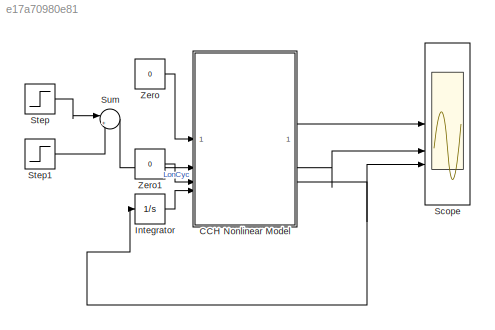
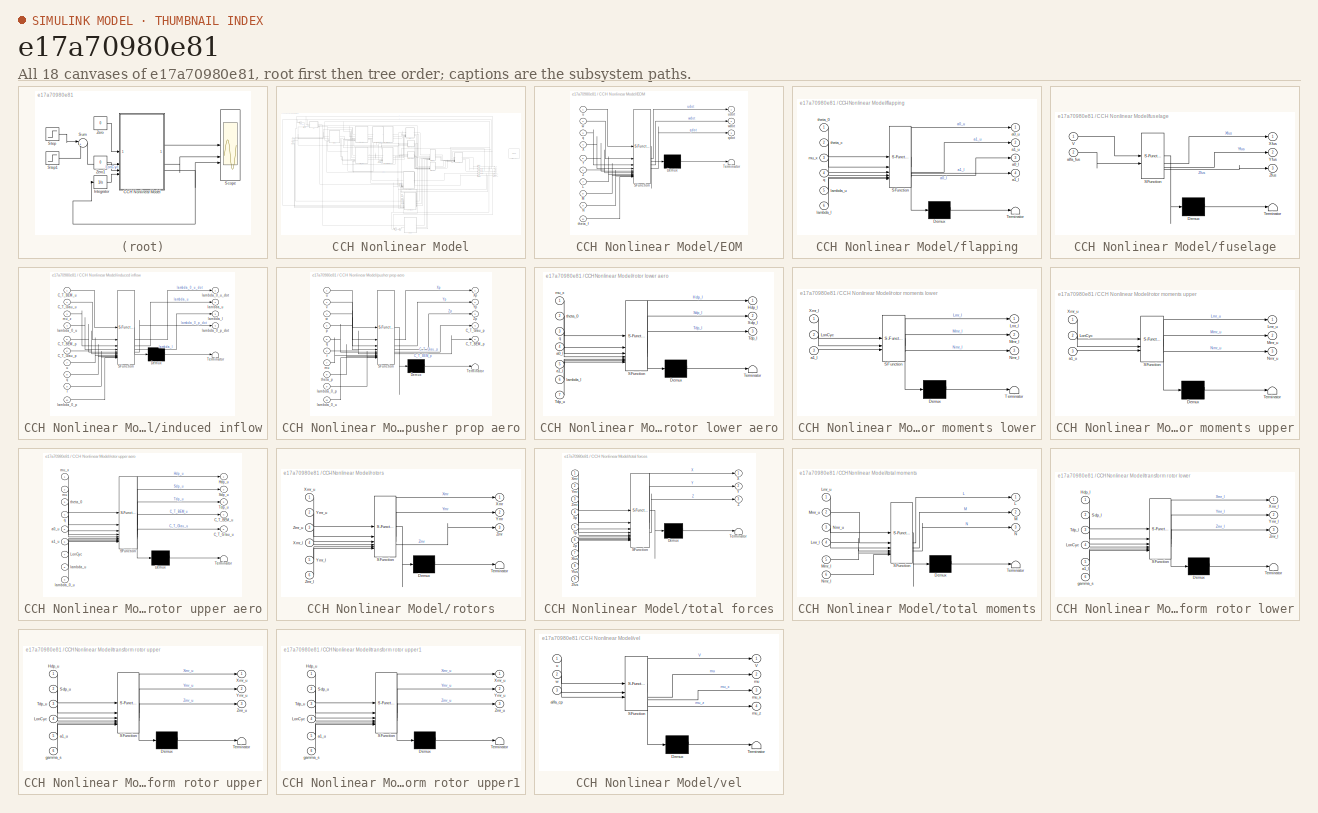
[diagram: thumbnail index - all 18 canvases of the model, root first then tree order]
MODEL slx_e17a70980e81
KIND model
CONFIG AbsTol = auto
CONFIG EnableMultiTasking = off
CONFIG FixedStep = auto
CONFIG MaxStep = auto
CONFIG MinStep = auto
CONFIG RelTol = 1e-3
CONFIG SampleTimeConstraint = Unconstrained
CONFIG SolverName = VariableStepAuto
CONFIG StartTime = 0.0
CONFIG StopTime = 10.0
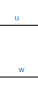
[diagram: CCH Nonlinear Model - part 1/7, top center region]
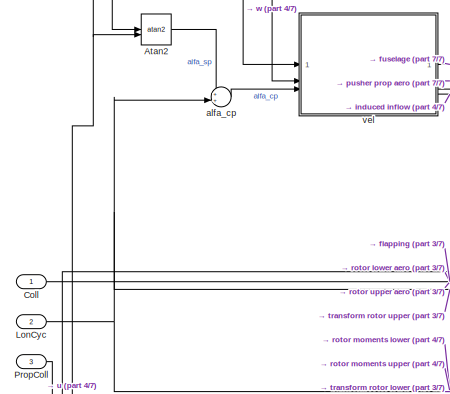
[diagram: CCH Nonlinear Model - part 2/7, top left region]
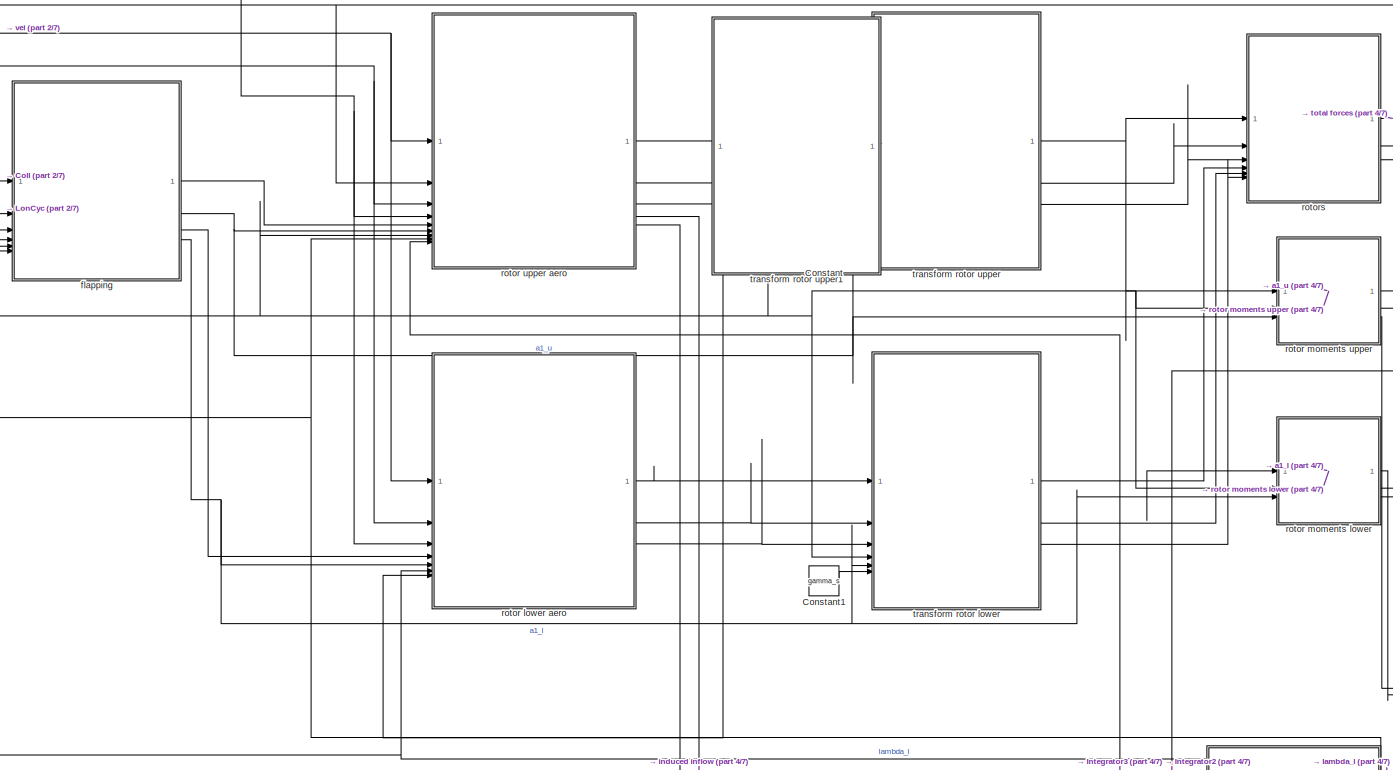
[diagram: CCH Nonlinear Model - part 3/7, top center region]
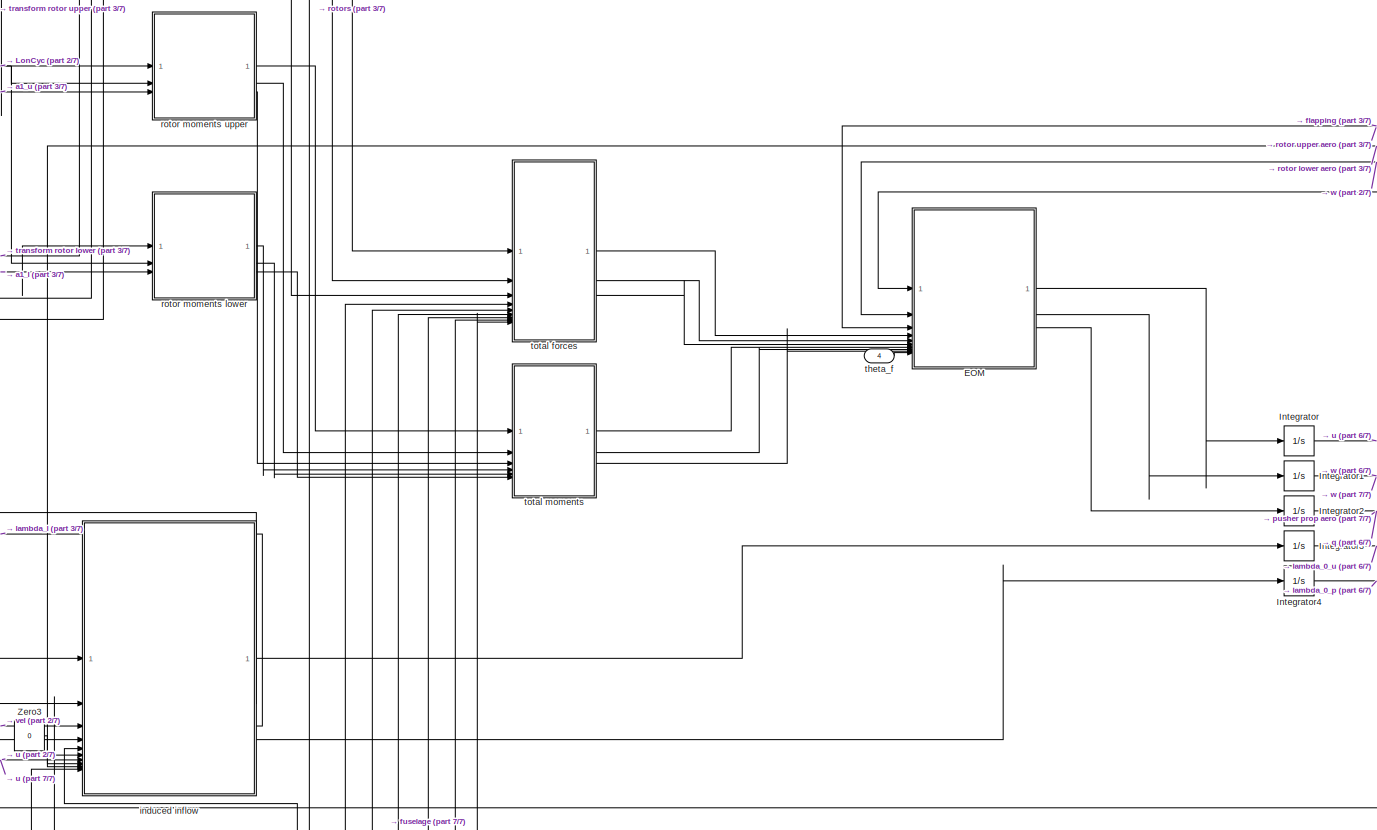
[diagram: CCH Nonlinear Model - part 4/7, central region]
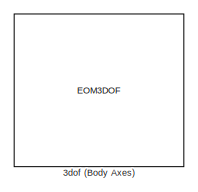
[diagram: CCH Nonlinear Model - part 5/7, middle right region]
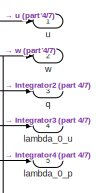
[diagram: CCH Nonlinear Model - part 6/7, middle right region]
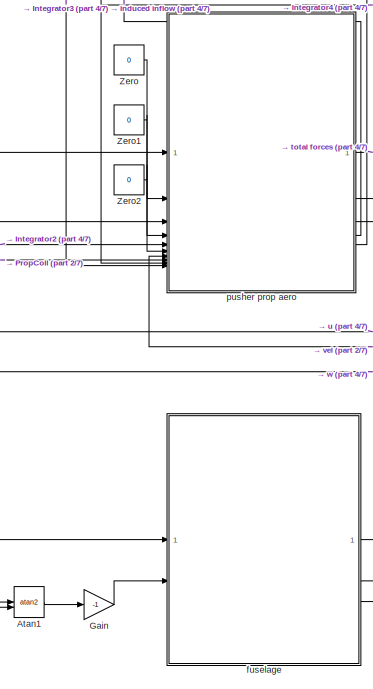
[diagram: CCH Nonlinear Model - part 7/7, bottom center region]
BLOCK [SubSystem] CCH Nonlinear Model
BLOCK [EOM3DOF] CCH Nonlinear Model/3dof (Body Axes)
  Iyy = Iyy
  g = g
  mass = mass
  v_ini = 0
BLOCK [Trigonometry] CCH Nonlinear Model/Atan1
  Operator = atan2
BLOCK [Trigonometry] CCH Nonlinear Model/Atan2
  Operator = atan2
BLOCK [Inport] CCH Nonlinear Model/Coll
BLOCK [Constant] CCH Nonlinear Model/Constant
  Value = gamma_s
BLOCK [Constant] CCH Nonlinear Model/Constant1
  Value = gamma_s
BLOCK [SubSystem] CCH Nonlinear Model/EOM
  ErrorFcn = Stateflow.Translate.translate
  LibrarySourceBlock = simulink/User-Defined\nFunctions/MATLAB Function
  PermitHierarchicalResolution = ExplicitOnly
  SFBlockType = MATLAB Function
  TreatAsAtomicUnit = on
BLOCK [Demux] CCH Nonlinear Model/EOM/ Demux 
  Outputs = 1
BLOCK [S-Function] CCH Nonlinear Model/EOM/ SFunction 
  EnableBusSupport = on
  FunctionName = sf_sfun
  PortCounts = [10 4]
  SFcnIsStateOwnerBlock = off
  SFunctionDeploymentMode = off
  Tag = Stateflow S-Function 16
BLOCK [Terminator] CCH Nonlinear Model/EOM/ Terminator 
BLOCK [Inport] CCH Nonlinear Model/EOM/L
  Port = 7
BLOCK [Inport] CCH Nonlinear Model/EOM/M
  Port = 8
BLOCK [Inport] CCH Nonlinear Model/EOM/N
  Port = 9
BLOCK [Inport] CCH Nonlinear Model/EOM/X
  Port = 4
BLOCK [Inport] CCH Nonlinear Model/EOM/Y
  Port = 5
BLOCK [Inport] CCH Nonlinear Model/EOM/Z
  Port = 6
BLOCK [Inport] CCH Nonlinear Model/EOM/q
  Port = 3
BLOCK [Outport] CCH Nonlinear Model/EOM/qdot
  Port = 3
BLOCK [Inport] CCH Nonlinear Model/EOM/theta_f
  Port = 10
BLOCK [Inport] CCH Nonlinear Model/EOM/u
BLOCK [Outport] CCH Nonlinear Model/EOM/udot
BLOCK [Inport] CCH Nonlinear Model/EOM/w
  Port = 2
BLOCK [Outport] CCH Nonlinear Model/EOM/wdot
  Port = 2
BLOCK [Gain] CCH Nonlinear Model/Gain
  Gain = -1
BLOCK [Integrator] CCH Nonlinear Model/Integrator
BLOCK [Integrator] CCH Nonlinear Model/Integrator1
BLOCK [Integrator] CCH Nonlinear Model/Integrator2
BLOCK [Integrator] CCH Nonlinear Model/Integrator3
BLOCK [Integrator] CCH Nonlinear Model/Integrator4
BLOCK [Inport] CCH Nonlinear Model/LonCyc
  Port = 2
BLOCK [Inport] CCH Nonlinear Model/PropColl
  Port = 3
BLOCK [Constant] CCH Nonlinear Model/Zero
  OutDataTypeStr = Inherit: Inherit via back propagation
  Value = 0
BLOCK [Constant] CCH Nonlinear Model/Zero1
  OutDataTypeStr = Inherit: Inherit via back propagation
  Value = 0
BLOCK [Constant] CCH Nonlinear Model/Zero2
  OutDataTypeStr = Inherit: Inherit via back propagation
  Value = 0
BLOCK [Constant] CCH Nonlinear Model/Zero3
  OutDataTypeStr = Inherit: Inherit via back propagation
  Value = 0
BLOCK [Sum] CCH Nonlinear Model/alfa_cp
  Inputs = ++|
BLOCK [SubSystem] CCH Nonlinear Model/flapping
  ErrorFcn = Stateflow.Translate.translate
  LibrarySourceBlock = simulink/User-Defined\nFunctions/MATLAB Function
  PermitHierarchicalResolution = ExplicitOnly
  SFBlockType = MATLAB Function
  TreatAsAtomicUnit = on
BLOCK [Demux] CCH Nonlinear Model/flapping/ Demux 
  Outputs = 1
BLOCK [S-Function] CCH Nonlinear Model/flapping/ SFunction 
  EnableBusSupport = on
  FunctionName = sf_sfun
  PortCounts = [6 5]
  SFcnIsStateOwnerBlock = off
  SFunctionDeploymentMode = off
  Tag = Stateflow S-Function 2
BLOCK [Terminator] CCH Nonlinear Model/flapping/ Terminator 
BLOCK [Outport] CCH Nonlinear Model/flapping/a0_l
  Port = 3
BLOCK [Outport] CCH Nonlinear Model/flapping/a0_u
BLOCK [Outport] CCH Nonlinear Model/flapping/a1_l
  Port = 4
BLOCK [Outport] CCH Nonlinear Model/flapping/a1_u
  Port = 2
BLOCK [Inport] CCH Nonlinear Model/flapping/lambda_l
  Port = 6
BLOCK [Inport] CCH Nonlinear Model/flapping/lambda_u
  Port = 5
BLOCK [Inport] CCH Nonlinear Model/flapping/mu_x
  Port = 3
BLOCK [Inport] CCH Nonlinear Model/flapping/q
  Port = 4
BLOCK [Inport] CCH Nonlinear Model/flapping/theta_0
BLOCK [Inport] CCH Nonlinear Model/flapping/theta_c
  Port = 2
BLOCK [SubSystem] CCH Nonlinear Model/fuselage
  ErrorFcn = Stateflow.Translate.translate
  LibrarySourceBlock = simulink/User-Defined\nFunctions/MATLAB Function
  PermitHierarchicalResolution = ExplicitOnly
  SFBlockType = MATLAB Function
  TreatAsAtomicUnit = on
BLOCK [Demux] CCH Nonlinear Model/fuselage/ Demux 
  Outputs = 1
BLOCK [S-Function] CCH Nonlinear Model/fuselage/ SFunction 
  EnableBusSupport = on
  FunctionName = sf_sfun
  PortCounts = [2 4]
  SFcnIsStateOwnerBlock = off
  SFunctionDeploymentMode = off
  Tag = Stateflow S-Function 13
BLOCK [Terminator] CCH Nonlinear Model/fuselage/ Terminator 
BLOCK [Inport] CCH Nonlinear Model/fuselage/V
BLOCK [Outport] CCH Nonlinear Model/fuselage/Xfus
BLOCK [Outport] CCH Nonlinear Model/fuselage/Yfus
  Port = 2
BLOCK [Outport] CCH Nonlinear Model/fuselage/Zfus
  Port = 3
BLOCK [Inport] CCH Nonlinear Model/fuselage/alfa_fus
  Port = 2
BLOCK [SubSystem] CCH Nonlinear Model/induced inflow
  ErrorFcn = Stateflow.Translate.translate
  LibrarySourceBlock = simulink/User-Defined\nFunctions/MATLAB Function
  PermitHierarchicalResolution = ExplicitOnly
  SFBlockType = MATLAB Function
  TreatAsAtomicUnit = on
BLOCK [Demux] CCH Nonlinear Model/induced inflow/ Demux 
  Outputs = 1
BLOCK [S-Function] CCH Nonlinear Model/induced inflow/ SFunction 
  EnableBusSupport = on
  FunctionName = sf_sfun
  PortCounts = [10 5]
  SFcnIsStateOwnerBlock = off
  SFunctionDeploymentMode = off
  Tag = Stateflow S-Function 6
BLOCK [Terminator] CCH Nonlinear Model/induced inflow/ Terminator 
BLOCK [Inport] CCH Nonlinear Model/induced inflow/C_T_BEM_p
  Port = 5
BLOCK [Inport] CCH Nonlinear Model/induced inflow/C_T_BEM_u
BLOCK [Inport] CCH Nonlinear Model/induced inflow/C_T_Glau_p
  Port = 6
BLOCK [Inport] CCH Nonlinear Model/induced inflow/C_T_Glau_u
  Port = 2
BLOCK [Inport] CCH Nonlinear Model/induced inflow/lambda_0_p
  Port = 10
BLOCK [Outport] CCH Nonlinear Model/induced inflow/lambda_0_p_dot
  Port = 4
BLOCK [Inport] CCH Nonlinear Model/induced inflow/lambda_0_u
  Port = 4
BLOCK [Outport] CCH Nonlinear Model/induced inflow/lambda_0_u_dot
BLOCK [Outport] CCH Nonlinear Model/induced inflow/lambda_l
  Port = 3
BLOCK [Outport] CCH Nonlinear Model/induced inflow/lambda_u
  Port = 2
BLOCK [Inport] CCH Nonlinear Model/induced inflow/mu_z
  Port = 3
BLOCK [Inport] CCH Nonlinear Model/induced inflow/q
  Port = 8
BLOCK [Inport] CCH Nonlinear Model/induced inflow/r
  Port = 9
BLOCK [Inport] CCH Nonlinear Model/induced inflow/u
  Port = 7
BLOCK [Outport] CCH Nonlinear Model/lambda_0_p
  Port = 5
BLOCK [Outport] CCH Nonlinear Model/lambda_0_u
  Port = 4
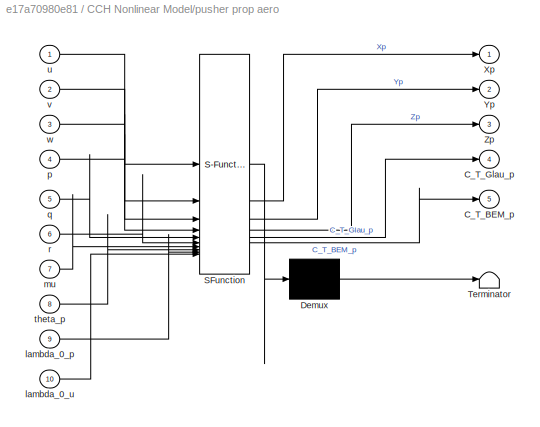
BLOCK [SubSystem] CCH Nonlinear Model/pusher prop aero
  ErrorFcn = Stateflow.Translate.translate
  LibrarySourceBlock = simulink/User-Defined\nFunctions/MATLAB Function
  PermitHierarchicalResolution = ExplicitOnly
  SFBlockType = MATLAB Function
  TreatAsAtomicUnit = on
BLOCK [Demux] CCH Nonlinear Model/pusher prop aero/ Demux 
  Outputs = 1
BLOCK [S-Function] CCH Nonlinear Model/pusher prop aero/ SFunction 
  EnableBusSupport = on
  FunctionName = sf_sfun
  PortCounts = [10 6]
  SFcnIsStateOwnerBlock = off
  SFunctionDeploymentMode = off
  Tag = Stateflow S-Function 10
BLOCK [Terminator] CCH Nonlinear Model/pusher prop aero/ Terminator 
BLOCK [Outport] CCH Nonlinear Model/pusher prop aero/C_T_BEM_p
  Port = 5
BLOCK [Outport] CCH Nonlinear Model/pusher prop aero/C_T_Glau_p
  Port = 4
BLOCK [Outport] CCH Nonlinear Model/pusher prop aero/Xp
BLOCK [Outport] CCH Nonlinear Model/pusher prop aero/Yp
  Port = 2
BLOCK [Outport] CCH Nonlinear Model/pusher prop aero/Zp
  Port = 3
BLOCK [Inport] CCH Nonlinear Model/pusher prop aero/lambda_0_p
  Port = 9
BLOCK [Inport] CCH Nonlinear Model/pusher prop aero/lambda_0_u
  Port = 10
BLOCK [Inport] CCH Nonlinear Model/pusher prop aero/mu
  Port = 7
BLOCK [Inport] CCH Nonlinear Model/pusher prop aero/p
  Port = 4
BLOCK [Inport] CCH Nonlinear Model/pusher prop aero/q
  Port = 5
BLOCK [Inport] CCH Nonlinear Model/pusher prop aero/r
  Port = 6
BLOCK [Inport] CCH Nonlinear Model/pusher prop aero/theta_p
  Port = 8
BLOCK [Inport] CCH Nonlinear Model/pusher prop aero/u
BLOCK [Inport] CCH Nonlinear Model/pusher prop aero/v
  Port = 2
BLOCK [Inport] CCH Nonlinear Model/pusher prop aero/w
  Port = 3
BLOCK [Outport] CCH Nonlinear Model/q
  Port = 3
BLOCK [SubSystem] CCH Nonlinear Model/rotor lower aero
  ErrorFcn = Stateflow.Translate.translate
  LibrarySourceBlock = simulink/User-Defined\nFunctions/MATLAB Function
  PermitHierarchicalResolution = ExplicitOnly
  SFBlockType = MATLAB Function
  TreatAsAtomicUnit = on
BLOCK [Demux] CCH Nonlinear Model/rotor lower aero/ Demux 
  Outputs = 1
BLOCK [S-Function] CCH Nonlinear Model/rotor lower aero/ SFunction 
  EnableBusSupport = on
  FunctionName = sf_sfun
  PortCounts = [7 4]
  SFcnIsStateOwnerBlock = off
  SFunctionDeploymentMode = off
  Tag = Stateflow S-Function 7
BLOCK [Terminator] CCH Nonlinear Model/rotor lower aero/ Terminator 
BLOCK [Outport] CCH Nonlinear Model/rotor lower aero/Hdp_l
BLOCK [Outport] CCH Nonlinear Model/rotor lower aero/Sdp_l
  Port = 2
BLOCK [Outport] CCH Nonlinear Model/rotor lower aero/Tdp_l
  Port = 3
BLOCK [Inport] CCH Nonlinear Model/rotor lower aero/Tdp_u
  Port = 7
BLOCK [Inport] CCH Nonlinear Model/rotor lower aero/a0_l
  Port = 4
BLOCK [Inport] CCH Nonlinear Model/rotor lower aero/a1_l
  Port = 5
BLOCK [Inport] CCH Nonlinear Model/rotor lower aero/lambda_l
  Port = 6
BLOCK [Inport] CCH Nonlinear Model/rotor lower aero/mu_x
BLOCK [Inport] CCH Nonlinear Model/rotor lower aero/q
  Port = 3
BLOCK [Inport] CCH Nonlinear Model/rotor lower aero/theta_0
  Port = 2
BLOCK [SubSystem] CCH Nonlinear Model/rotor moments lower
  ErrorFcn = Stateflow.Translate.translate
  LibrarySourceBlock = simulink/User-Defined\nFunctions/MATLAB Function
  PermitHierarchicalResolution = ExplicitOnly
  SFBlockType = MATLAB Function
  TreatAsAtomicUnit = on
BLOCK [Demux] CCH Nonlinear Model/rotor moments lower/ Demux 
  Outputs = 1
BLOCK [S-Function] CCH Nonlinear Model/rotor moments lower/ SFunction 
  EnableBusSupport = on
  FunctionName = sf_sfun
  PortCounts = [3 4]
  SFcnIsStateOwnerBlock = off
  SFunctionDeploymentMode = off
  Tag = Stateflow S-Function 12
BLOCK [Terminator] CCH Nonlinear Model/rotor moments lower/ Terminator 
BLOCK [Outport] CCH Nonlinear Model/rotor moments lower/Lmr_l
BLOCK [Inport] CCH Nonlinear Model/rotor moments lower/LonCyc
  Port = 2
BLOCK [Outport] CCH Nonlinear Model/rotor moments lower/Mmr_l
  Port = 2
BLOCK [Outport] CCH Nonlinear Model/rotor moments lower/Nmr_l
  Port = 3
BLOCK [Inport] CCH Nonlinear Model/rotor moments lower/Xmr_l
BLOCK [Inport] CCH Nonlinear Model/rotor moments lower/a1_l
  Port = 3
BLOCK [SubSystem] CCH Nonlinear Model/rotor moments upper
  ErrorFcn = Stateflow.Translate.translate
  LibrarySourceBlock = simulink/User-Defined\nFunctions/MATLAB Function
  PermitHierarchicalResolution = ExplicitOnly
  SFBlockType = MATLAB Function
  TreatAsAtomicUnit = on
BLOCK [Demux] CCH Nonlinear Model/rotor moments upper/ Demux 
  Outputs = 1
BLOCK [S-Function] CCH Nonlinear Model/rotor moments upper/ SFunction 
  EnableBusSupport = on
  FunctionName = sf_sfun
  PortCounts = [3 4]
  SFcnIsStateOwnerBlock = off
  SFunctionDeploymentMode = off
  Tag = Stateflow S-Function 11
BLOCK [Terminator] CCH Nonlinear Model/rotor moments upper/ Terminator 
BLOCK [Outport] CCH Nonlinear Model/rotor moments upper/Lmr_u
BLOCK [Inport] CCH Nonlinear Model/rotor moments upper/LonCyc
  Port = 2
BLOCK [Outport] CCH Nonlinear Model/rotor moments upper/Mmr_u
  Port = 2
BLOCK [Outport] CCH Nonlinear Model/rotor moments upper/Nmr_u
  Port = 3
BLOCK [Inport] CCH Nonlinear Model/rotor moments upper/Xmr_u
BLOCK [Inport] CCH Nonlinear Model/rotor moments upper/a1_u
  Port = 3
BLOCK [SubSystem] CCH Nonlinear Model/rotor upper aero
  ErrorFcn = Stateflow.Translate.translate
  LibrarySourceBlock = simulink/User-Defined\nFunctions/MATLAB Function
  PermitHierarchicalResolution = ExplicitOnly
  SFBlockType = MATLAB Function
  TreatAsAtomicUnit = on
BLOCK [Demux] CCH Nonlinear Model/rotor upper aero/ Demux 
  Outputs = 1
BLOCK [S-Function] CCH Nonlinear Model/rotor upper aero/ SFunction 
  EnableBusSupport = on
  FunctionName = sf_sfun
  PortCounts = [9 6]
  SFcnIsStateOwnerBlock = off
  SFunctionDeploymentMode = off
  Tag = Stateflow S-Function 5
BLOCK [Terminator] CCH Nonlinear Model/rotor upper aero/ Terminator 
BLOCK [Outport] CCH Nonlinear Model/rotor upper aero/C_T_BEM_u
  Port = 4
BLOCK [Outport] CCH Nonlinear Model/rotor upper aero/C_T_Glau_u
  Port = 5
BLOCK [Outport] CCH Nonlinear Model/rotor upper aero/Hdp_u
BLOCK [Inport] CCH Nonlinear Model/rotor upper aero/LonCyc
  Port = 7
BLOCK [Outport] CCH Nonlinear Model/rotor upper aero/Sdp_u
  Port = 2
BLOCK [Outport] CCH Nonlinear Model/rotor upper aero/Tdp_u
  Port = 3
BLOCK [Inport] CCH Nonlinear Model/rotor upper aero/a0_u
  Port = 5
BLOCK [Inport] CCH Nonlinear Model/rotor upper aero/a1_u
  Port = 6
BLOCK [Inport] CCH Nonlinear Model/rotor upper aero/lambda_0_u
  Port = 9
BLOCK [Inport] CCH Nonlinear Model/rotor upper aero/lambda_u
  Port = 8
BLOCK [Inport] CCH Nonlinear Model/rotor upper aero/mu
  Port = 2
BLOCK [Inport] CCH Nonlinear Model/rotor upper aero/mu_x
BLOCK [Inport] CCH Nonlinear Model/rotor upper aero/q
  Port = 4
BLOCK [Inport] CCH Nonlinear Model/rotor upper aero/theta_0
  Port = 3
BLOCK [SubSystem] CCH Nonlinear Model/rotors
  ErrorFcn = Stateflow.Translate.translate
  LibrarySourceBlock = simulink/User-Defined\nFunctions/MATLAB Function
  PermitHierarchicalResolution = ExplicitOnly
  SFBlockType = MATLAB Function
  TreatAsAtomicUnit = on
BLOCK [Demux] CCH Nonlinear Model/rotors/ Demux 
  Outputs = 1
BLOCK [S-Function] CCH Nonlinear Model/rotors/ SFunction 
  EnableBusSupport = on
  FunctionName = sf_sfun
  PortCounts = [6 4]
  SFcnIsStateOwnerBlock = off
  SFunctionDeploymentMode = off
  Tag = Stateflow S-Function 9
BLOCK [Terminator] CCH Nonlinear Model/rotors/ Terminator 
BLOCK [Outport] CCH Nonlinear Model/rotors/Xmr
BLOCK [Inport] CCH Nonlinear Model/rotors/Xmr_l
  Port = 4
BLOCK [Inport] CCH Nonlinear Model/rotors/Xmr_u
BLOCK [Outport] CCH Nonlinear Model/rotors/Ymr
  Port = 2
BLOCK [Inport] CCH Nonlinear Model/rotors/Ymr_l
  Port = 5
BLOCK [Inport] CCH Nonlinear Model/rotors/Ymr_u
  Port = 2
BLOCK [Outport] CCH Nonlinear Model/rotors/Zmr
  Port = 3
BLOCK [Inport] CCH Nonlinear Model/rotors/Zmr_l
  Port = 6
BLOCK [Inport] CCH Nonlinear Model/rotors/Zmr_u
  Port = 3
BLOCK [Inport] CCH Nonlinear Model/theta_f
  Port = 4
BLOCK [SubSystem] CCH Nonlinear Model/total forces
  ErrorFcn = Stateflow.Translate.translate
  LibrarySourceBlock = simulink/User-Defined\nFunctions/MATLAB Function
  PermitHierarchicalResolution = ExplicitOnly
  SFBlockType = MATLAB Function
  TreatAsAtomicUnit = on
BLOCK [Demux] CCH Nonlinear Model/total forces/ Demux 
  Outputs = 1
BLOCK [S-Function] CCH Nonlinear Model/total forces/ SFunction 
  EnableBusSupport = on
  FunctionName = sf_sfun
  PortCounts = [9 4]
  SFcnIsStateOwnerBlock = off
  SFunctionDeploymentMode = off
  Tag = Stateflow S-Function 14
BLOCK [Terminator] CCH Nonlinear Model/total forces/ Terminator 
BLOCK [Outport] CCH Nonlinear Model/total forces/X
BLOCK [Inport] CCH Nonlinear Model/total forces/Xfus
  Port = 7
BLOCK [Inport] CCH Nonlinear Model/total forces/Xmr
BLOCK [Inport] CCH Nonlinear Model/total forces/Xp
  Port = 4
BLOCK [Outport] CCH Nonlinear Model/total forces/Y
  Port = 2
BLOCK [Inport] CCH Nonlinear Model/total forces/Yfus
  Port = 8
BLOCK [Inport] CCH Nonlinear Model/total forces/Ymr
  Port = 2
BLOCK [Inport] CCH Nonlinear Model/total forces/Yp
  Port = 5
BLOCK [Outport] CCH Nonlinear Model/total forces/Z
  Port = 3
BLOCK [Inport] CCH Nonlinear Model/total forces/Zfus
  Port = 9
BLOCK [Inport] CCH Nonlinear Model/total forces/Zmr
  Port = 3
BLOCK [Inport] CCH Nonlinear Model/total forces/Zp
  Port = 6
BLOCK [SubSystem] CCH Nonlinear Model/total moments
  ErrorFcn = Stateflow.Translate.translate
  LibrarySourceBlock = simulink/User-Defined\nFunctions/MATLAB Function
  PermitHierarchicalResolution = ExplicitOnly
  SFBlockType = MATLAB Function
  TreatAsAtomicUnit = on
BLOCK [Demux] CCH Nonlinear Model/total moments/ Demux 
  Outputs = 1
BLOCK [S-Function] CCH Nonlinear Model/total moments/ SFunction 
  EnableBusSupport = on
  FunctionName = sf_sfun
  PortCounts = [6 4]
  SFcnIsStateOwnerBlock = off
  SFunctionDeploymentMode = off
  Tag = Stateflow S-Function 15
BLOCK [Terminator] CCH Nonlinear Model/total moments/ Terminator 
BLOCK [Outport] CCH Nonlinear Model/total moments/L
BLOCK [Inport] CCH Nonlinear Model/total moments/Lmr_l
  Port = 4
BLOCK [Inport] CCH Nonlinear Model/total moments/Lmr_u
BLOCK [Outport] CCH Nonlinear Model/total moments/M
  Port = 2
BLOCK [Inport] CCH Nonlinear Model/total moments/Mmr_l
  Port = 5
BLOCK [Inport] CCH Nonlinear Model/total moments/Mmr_u
  Port = 2
BLOCK [Outport] CCH Nonlinear Model/total moments/N
  Port = 3
BLOCK [Inport] CCH Nonlinear Model/total moments/Nmr_l
  Port = 6
BLOCK [Inport] CCH Nonlinear Model/total moments/Nmr_u
  Port = 3
BLOCK [SubSystem] CCH Nonlinear Model/transform rotor lower
  ErrorFcn = Stateflow.Translate.translate
  LibrarySourceBlock = simulink/User-Defined\nFunctions/MATLAB Function
  PermitHierarchicalResolution = ExplicitOnly
  SFBlockType = MATLAB Function
  TreatAsAtomicUnit = on
BLOCK [Demux] CCH Nonlinear Model/transform rotor lower/ Demux 
  Outputs = 1
BLOCK [S-Function] CCH Nonlinear Model/transform rotor lower/ SFunction 
  EnableBusSupport = on
  FunctionName = sf_sfun
  PortCounts = [6 4]
  SFcnIsStateOwnerBlock = off
  SFunctionDeploymentMode = off
  Tag = Stateflow S-Function 8
BLOCK [Terminator] CCH Nonlinear Model/transform rotor lower/ Terminator 
BLOCK [Inport] CCH Nonlinear Model/transform rotor lower/Hdp_l
BLOCK [Inport] CCH Nonlinear Model/transform rotor lower/LonCyc
  Port = 4
BLOCK [Inport] CCH Nonlinear Model/transform rotor lower/Sdp_l
  Port = 2
BLOCK [Inport] CCH Nonlinear Model/transform rotor lower/Tdp_l
  Port = 3
BLOCK [Outport] CCH Nonlinear Model/transform rotor lower/Xmr_l
BLOCK [Outport] CCH Nonlinear Model/transform rotor lower/Ymr_l
  Port = 2
BLOCK [Outport] CCH Nonlinear Model/transform rotor lower/Zmr_l
  Port = 3
BLOCK [Inport] CCH Nonlinear Model/transform rotor lower/a1_l
  Port = 5
BLOCK [Inport] CCH Nonlinear Model/transform rotor lower/gamma_s
  Port = 6
BLOCK [SubSystem] CCH Nonlinear Model/transform rotor upper
  ErrorFcn = Stateflow.Translate.translate
  LibrarySourceBlock = simulink/User-Defined\nFunctions/MATLAB Function
  PermitHierarchicalResolution = ExplicitOnly
  SFBlockType = MATLAB Function
  TreatAsAtomicUnit = on
BLOCK [Demux] CCH Nonlinear Model/transform rotor upper/ Demux 
  Outputs = 1
BLOCK [S-Function] CCH Nonlinear Model/transform rotor upper/ SFunction 
  EnableBusSupport = on
  FunctionName = sf_sfun
  PortCounts = [6 4]
  SFcnIsStateOwnerBlock = off
  SFunctionDeploymentMode = off
  Tag = Stateflow S-Function 4
BLOCK [Terminator] CCH Nonlinear Model/transform rotor upper/ Terminator 
BLOCK [Inport] CCH Nonlinear Model/transform rotor upper/Hdp_u
BLOCK [Inport] CCH Nonlinear Model/transform rotor upper/LonCyc
  Port = 4
BLOCK [Inport] CCH Nonlinear Model/transform rotor upper/Sdp_u
  Port = 2
BLOCK [Inport] CCH Nonlinear Model/transform rotor upper/Tdp_u
  Port = 3
BLOCK [Outport] CCH Nonlinear Model/transform rotor upper/Xmr_u
BLOCK [Outport] CCH Nonlinear Model/transform rotor upper/Ymr_u
  Port = 2
BLOCK [Outport] CCH Nonlinear Model/transform rotor upper/Zmr_u
  Port = 3
BLOCK [Inport] CCH Nonlinear Model/transform rotor upper/a1_u
  Port = 5
BLOCK [Inport] CCH Nonlinear Model/transform rotor upper/gamma_s
  Port = 6
BLOCK [SubSystem] CCH Nonlinear Model/transform rotor upper1
  ErrorFcn = Stateflow.Translate.translate
  LibrarySourceBlock = simulink/User-Defined\nFunctions/MATLAB Function
  PermitHierarchicalResolution = ExplicitOnly
  SFBlockType = MATLAB Function
  TreatAsAtomicUnit = on
BLOCK [Demux] CCH Nonlinear Model/transform rotor upper1/ Demux 
  Outputs = 1
BLOCK [S-Function] CCH Nonlinear Model/transform rotor upper1/ SFunction 
  EnableBusSupport = on
  FunctionName = sf_sfun
  PortCounts = [6 4]
  SFcnIsStateOwnerBlock = off
  SFunctionDeploymentMode = off
  Tag = Stateflow S-Function 3
BLOCK [Terminator] CCH Nonlinear Model/transform rotor upper1/ Terminator 
BLOCK [Inport] CCH Nonlinear Model/transform rotor upper1/Hdp_u
BLOCK [Inport] CCH Nonlinear Model/transform rotor upper1/LonCyc
  Port = 4
BLOCK [Inport] CCH Nonlinear Model/transform rotor upper1/Sdp_u
  Port = 2
BLOCK [Inport] CCH Nonlinear Model/transform rotor upper1/Tdp_u
  Port = 3
BLOCK [Outport] CCH Nonlinear Model/transform rotor upper1/Xmr_u
BLOCK [Outport] CCH Nonlinear Model/transform rotor upper1/Ymr_u
  Port = 2
BLOCK [Outport] CCH Nonlinear Model/transform rotor upper1/Zmr_u
  Port = 3
BLOCK [Inport] CCH Nonlinear Model/transform rotor upper1/a1_u
  Port = 5
BLOCK [Inport] CCH Nonlinear Model/transform rotor upper1/gamma_s
  Port = 6
BLOCK [Outport] CCH Nonlinear Model/u
BLOCK [SubSystem] CCH Nonlinear Model/vel
  ErrorFcn = Stateflow.Translate.translate
  LibrarySourceBlock = simulink/User-Defined\nFunctions/MATLAB Function
  PermitHierarchicalResolution = ExplicitOnly
  SFBlockType = MATLAB Function
  TreatAsAtomicUnit = on
BLOCK [Demux] CCH Nonlinear Model/vel/ Demux 
  Outputs = 1
BLOCK [S-Function] CCH Nonlinear Model/vel/ SFunction 
  EnableBusSupport = on
  FunctionName = sf_sfun
  PortCounts = [3 5]
  SFcnIsStateOwnerBlock = off
  SFunctionDeploymentMode = off
  Tag = Stateflow S-Function 1
BLOCK [Terminator] CCH Nonlinear Model/vel/ Terminator 
BLOCK [Outport] CCH Nonlinear Model/vel/V
BLOCK [Inport] CCH Nonlinear Model/vel/alfa_cp
  Port = 3
BLOCK [Outport] CCH Nonlinear Model/vel/mu
  Port = 2
BLOCK [Outport] CCH Nonlinear Model/vel/mu_x
  Port = 3
BLOCK [Outport] CCH Nonlinear Model/vel/mu_z
  Port = 4
BLOCK [Inport] CCH Nonlinear Model/vel/u
BLOCK [Inport] CCH Nonlinear Model/vel/w
  Port = 2
BLOCK [Outport] CCH Nonlinear Model/w
  Port = 2
BLOCK [Integrator] Integrator
BLOCK [Scope] Scope
  Floating = off
  NumInputPorts = 3
  ScopeSpecificationString = Simulink.scopes.TimeScopeBlockCfg('CurrentConfiguration', extmgr.ConfigurationSet(extmgr.Configuration('Core','General UI',true),extmgr.Configuration('Core','Source UI',true),extmgr.Configuration('Sources','WiredSimulink',true),extmgr.Configuration('Visuals','Time Domain',true),extmgr.Configuration('Tools','Plot Navigation',true),extmgr.Configuration('Tools','Measurements',true)),'Version','2023a'...<+1ch>
BLOCK [Step] Step
  SampleTime = 0
BLOCK [Step] Step1
  After = -1
  SampleTime = 0
  Time = 2
BLOCK [Sum] Sum
  Inputs = |++
BLOCK [Constant] Zero
  OutDataTypeStr = Inherit: Inherit via back propagation
  Value = 0
BLOCK [Constant] Zero1
  OutDataTypeStr = Inherit: Inherit via back propagation
  Value = 0
LINE CCH Nonlinear Model/Atan1:1 -> CCH Nonlinear Model/Gain:1
LINE CCH Nonlinear Model/Atan2:1 -> CCH Nonlinear Model/alfa_cp:1
NET CCH Nonlinear Model/Coll:1 -> CCH Nonlinear Model/flapping:1, CCH Nonlinear Model/rotor lower aero:2, CCH Nonlinear Model/rotor upper aero:3
LINE CCH Nonlinear Model/Constant1:1 -> CCH Nonlinear Model/transform rotor lower:6
LINE CCH Nonlinear Model/Constant:1 -> CCH Nonlinear Model/transform rotor upper:6
LINE CCH Nonlinear Model/EOM:1 -> CCH Nonlinear Model/Integrator:1
LINE CCH Nonlinear Model/EOM:2 -> CCH Nonlinear Model/Integrator1:1
LINE CCH Nonlinear Model/EOM:3 -> CCH Nonlinear Model/Integrator2:1
LINE CCH Nonlinear Model/Gain:1 -> CCH Nonlinear Model/fuselage:2
NET CCH Nonlinear Model/Integrator1:1 -> CCH Nonlinear Model/Atan1:1, CCH Nonlinear Model/Atan2:1, CCH Nonlinear Model/EOM:2, CCH Nonlinear Model/pusher prop aero:3, CCH Nonlinear Model/vel:2, CCH Nonlinear Model/w:1
NET CCH Nonlinear Model/Integrator2:1 -> CCH Nonlinear Model/EOM:3, CCH Nonlinear Model/flapping:4, CCH Nonlinear Model/induced inflow:8, CCH Nonlinear Model/pusher prop aero:5, CCH Nonlinear Model/q:1, CCH Nonlinear Model/rotor lower aero:3, CCH Nonlinear Model/rotor upper aero:4
NET CCH Nonlinear Model/Integrator3:1 -> CCH Nonlinear Model/induced inflow:4, CCH Nonlinear Model/lambda_0_u:1, CCH Nonlinear Model/pusher prop aero:10, CCH Nonlinear Model/rotor upper aero:9
NET CCH Nonlinear Model/Integrator4:1 -> CCH Nonlinear Model/induced inflow:10, CCH Nonlinear Model/lambda_0_p:1, CCH Nonlinear Model/pusher prop aero:9
NET CCH Nonlinear Model/Integrator:1 -> CCH Nonlinear Model/Atan1:2, CCH Nonlinear Model/Atan2:2, CCH Nonlinear Model/EOM:1, CCH Nonlinear Model/induced inflow:7, CCH Nonlinear Model/pusher prop aero:1, CCH Nonlinear Model/u:1, CCH Nonlinear Model/vel:1
NET CCH Nonlinear Model/LonCyc:1 -> CCH Nonlinear Model/alfa_cp:2, CCH Nonlinear Model/flapping:2, CCH Nonlinear Model/rotor moments lower:2, CCH Nonlinear Model/rotor moments upper:2, CCH Nonlinear Model/rotor upper aero:7, CCH Nonlinear Model/transform rotor lower:4, CCH Nonlinear Model/transform rotor upper:4
LINE CCH Nonlinear Model/PropColl:1 -> CCH Nonlinear Model/pusher prop aero:8
LINE CCH Nonlinear Model/Zero1:1 -> CCH Nonlinear Model/pusher prop aero:4
LINE CCH Nonlinear Model/Zero2:1 -> CCH Nonlinear Model/pusher prop aero:6
LINE CCH Nonlinear Model/Zero3:1 -> CCH Nonlinear Model/induced inflow:9
LINE CCH Nonlinear Model/Zero:1 -> CCH Nonlinear Model/pusher prop aero:2
LINE CCH Nonlinear Model/alfa_cp:1 -> CCH Nonlinear Model/vel:3
LINE CCH Nonlinear Model/flapping:1 -> CCH Nonlinear Model/rotor upper aero:5
NET CCH Nonlinear Model/flapping:2 -> CCH Nonlinear Model/rotor moments upper:3, CCH Nonlinear Model/rotor upper aero:6, CCH Nonlinear Model/transform rotor upper:5
LINE CCH Nonlinear Model/flapping:3 -> CCH Nonlinear Model/rotor lower aero:4
NET CCH Nonlinear Model/flapping:4 -> CCH Nonlinear Model/rotor lower aero:5, CCH Nonlinear Model/rotor moments lower:3, CCH Nonlinear Model/transform rotor lower:5
LINE CCH Nonlinear Model/fuselage:1 -> CCH Nonlinear Model/total forces:7
LINE CCH Nonlinear Model/fuselage:2 -> CCH Nonlinear Model/total forces:8
LINE CCH Nonlinear Model/fuselage:3 -> CCH Nonlinear Model/total forces:9
LINE CCH Nonlinear Model/induced inflow:1 -> CCH Nonlinear Model/Integrator3:1
NET CCH Nonlinear Model/induced inflow:2 -> CCH Nonlinear Model/flapping:5, CCH Nonlinear Model/rotor upper aero:8
NET CCH Nonlinear Model/induced inflow:3 -> CCH Nonlinear Model/flapping:6, CCH Nonlinear Model/rotor lower aero:6
LINE CCH Nonlinear Model/induced inflow:4 -> CCH Nonlinear Model/Integrator4:1
LINE CCH Nonlinear Model/pusher prop aero:1 -> CCH Nonlinear Model/total forces:4
LINE CCH Nonlinear Model/pusher prop aero:2 -> CCH Nonlinear Model/total forces:5
LINE CCH Nonlinear Model/pusher prop aero:3 -> CCH Nonlinear Model/total forces:6
LINE CCH Nonlinear Model/pusher prop aero:4 -> CCH Nonlinear Model/induced inflow:6
LINE CCH Nonlinear Model/pusher prop aero:5 -> CCH Nonlinear Model/induced inflow:5
LINE CCH Nonlinear Model/rotor lower aero:1 -> CCH Nonlinear Model/transform rotor lower:1
LINE CCH Nonlinear Model/rotor lower aero:2 -> CCH Nonlinear Model/transform rotor lower:2
LINE CCH Nonlinear Model/rotor lower aero:3 -> CCH Nonlinear Model/transform rotor lower:3
LINE CCH Nonlinear Model/rotor moments lower:1 -> CCH Nonlinear Model/total moments:4
LINE CCH Nonlinear Model/rotor moments lower:2 -> CCH Nonlinear Model/total moments:5
LINE CCH Nonlinear Model/rotor moments lower:3 -> CCH Nonlinear Model/total moments:6
LINE CCH Nonlinear Model/rotor moments upper:1 -> CCH Nonlinear Model/total moments:1
LINE CCH Nonlinear Model/rotor moments upper:2 -> CCH Nonlinear Model/total moments:2
LINE CCH Nonlinear Model/rotor moments upper:3 -> CCH Nonlinear Model/total moments:3
LINE CCH Nonlinear Model/rotor upper aero:1 -> CCH Nonlinear Model/transform rotor upper:1
LINE CCH Nonlinear Model/rotor upper aero:2 -> CCH Nonlinear Model/transform rotor upper:2
NET CCH Nonlinear Model/rotor upper aero:3 -> CCH Nonlinear Model/rotor lower aero:7, CCH Nonlinear Model/transform rotor upper:3
LINE CCH Nonlinear Model/rotor upper aero:4 -> CCH Nonlinear Model/induced inflow:1
LINE CCH Nonlinear Model/rotor upper aero:5 -> CCH Nonlinear Model/induced inflow:2
LINE CCH Nonlinear Model/rotors:1 -> CCH Nonlinear Model/total forces:1
LINE CCH Nonlinear Model/rotors:2 -> CCH Nonlinear Model/total forces:2
LINE CCH Nonlinear Model/rotors:3 -> CCH Nonlinear Model/total forces:3
LINE CCH Nonlinear Model/theta_f:1 -> CCH Nonlinear Model/EOM:10
LINE CCH Nonlinear Model/total forces:1 -> CCH Nonlinear Model/EOM:4
LINE CCH Nonlinear Model/total forces:2 -> CCH Nonlinear Model/EOM:5
LINE CCH Nonlinear Model/total forces:3 -> CCH Nonlinear Model/EOM:6
LINE CCH Nonlinear Model/total moments:1 -> CCH Nonlinear Model/EOM:7
LINE CCH Nonlinear Model/total moments:2 -> CCH Nonlinear Model/EOM:8
LINE CCH Nonlinear Model/total moments:3 -> CCH Nonlinear Model/EOM:9
NET CCH Nonlinear Model/transform rotor lower:1 -> CCH Nonlinear Model/rotor moments lower:1, CCH Nonlinear Model/rotors:4
LINE CCH Nonlinear Model/transform rotor lower:2 -> CCH Nonlinear Model/rotors:5
LINE CCH Nonlinear Model/transform rotor lower:3 -> CCH Nonlinear Model/rotors:6
NET CCH Nonlinear Model/transform rotor upper:1 -> CCH Nonlinear Model/rotor moments upper:1, CCH Nonlinear Model/rotors:1
LINE CCH Nonlinear Model/transform rotor upper:2 -> CCH Nonlinear Model/rotors:2
LINE CCH Nonlinear Model/transform rotor upper:3 -> CCH Nonlinear Model/rotors:3
LINE CCH Nonlinear Model/vel:1 -> CCH Nonlinear Model/fuselage:1
NET CCH Nonlinear Model/vel:2 -> CCH Nonlinear Model/pusher prop aero:7, CCH Nonlinear Model/rotor upper aero:2
NET CCH Nonlinear Model/vel:3 -> CCH Nonlinear Model/flapping:3, CCH Nonlinear Model/rotor lower aero:1, CCH Nonlinear Model/rotor upper aero:1
LINE CCH Nonlinear Model/vel:4 -> CCH Nonlinear Model/induced inflow:3
LINE CCH Nonlinear Model:1 -> Scope:1
LINE CCH Nonlinear Model:2 -> Scope:2
NET CCH Nonlinear Model:3 -> Integrator:1, Scope:3
LINE Integrator:1 -> CCH Nonlinear Model:4
LINE Step1:1 -> Sum:2
LINE Step:1 -> Sum:1
LINE Sum:1 -> CCH Nonlinear Model:2
LINE Zero1:1 -> CCH Nonlinear Model:3
LINE Zero:1 -> CCH Nonlinear Model:1
note: NET lines group one-source signal fan-out (src -> all destinations, sorted); 1:1 wires keep LINE
CHART CCH Nonlinear Model/rotor lower aero states=1 transitions=1
  STATE_LABEL 'eML_blk_kernel()'
  STATE_LABEL 'SCRIPT:\nfunction [Hdp_l, Sdp_l, Tdp_l] = rotor_lower_aero(mu_x, theta_0, q, a0_l, a1_l, lambda_l, Tdp_u)\n    \n    c_l_a = rad2deg(0.1);\n    Omega = 35;\n    rho = 1.225;\n    R = 5.49;\n    sigma = 0.153;\n\n    CHdp_l = sigma*0.015*mu_x/4 + sigma*c_l_a/4*((a1_l*mu_x^2/2 + mu_x*lambda_l)*theta_0/2 ...\n        + q/Omega*(-a0_l/3) + (a0_l^2+a1_l^2)*mu_x/2);\n    Hdp_l = CHdp_l * rho * (Omega*R)^2 * pi*R^2...<+45ch>'
CHART CCH Nonlinear Model/transform rotor lower states=1 transitions=1
  STATE_LABEL 'eML_blk_kernel()'
  STATE_LABEL 'SCRIPT:\nfunction [Xmr_l, Ymr_l, Zmr_l] = transform_rotor_lower(Hdp_l, Sdp_l, Tdp_l, LonCyc, a1_l, gamma_s)\n\n    b1R_l = 0;\n    gamma_s = deg2rad(-0);\n\n    % Forces\n    fmr_l_dp = [-Hdp_l; Sdp_l; -Tdp_l];\n\n    a1R_l = LonCyc - a1_l;\n\n    Tdp_b = [cos(a1R_l+gamma_s),    sin(a1R_l+gamma_s)*sin(b1R_l),  sin(a1R_l+gamma_s)*cos(b1R_l);\n            0,                      cos(b1R_l),                     ...<+222ch>'
CHART CCH Nonlinear Model/rotors states=1 transitions=1
  STATE_LABEL 'eML_blk_kernel()'
  STATE_LABEL 'SCRIPT:\nfunction [Xmr, Ymr, Zmr] = rotor(Xmr_u, Ymr_u, Zmr_u, Xmr_l, Ymr_l, Zmr_l)\n\n    Xmr = Xmr_u + Xmr_l;\n    Ymr = Ymr_u + Ymr_l;\n    Zmr = Zmr_u + Zmr_l;\n\nend'
CHART CCH Nonlinear Model/pusher prop aero states=1 transitions=1
  STATE_LABEL 'eML_blk_kernel()'
  STATE_LABEL 'SCRIPT:\nfunction [Xp, Yp, Zp, C_T_Glau_p, C_T_BEM_p] = pusher_propeller_aero(u, v, w, p, q, r, mu, theta_p, lambda_0_p, lambda_0_u)\n\n    Kp = 0.4;\n    Omega = 35;\n    R = 5.49;\n    l_p = 7.66;     % x location \n    h_p = 0;        % z location\n    d_p = 0;        % y location\n    omega_p = 207;\n    R_p = 1.4;\n    sigma_p = 0.142;\n    c_l_a_p = 5.7;\n    twist_p = deg2rad(-30);\n    rho = 1.225;\n\n   ...<+525ch>'
CHART CCH Nonlinear Model/rotor moments upper states=1 transitions=1
  STATE_LABEL 'eML_blk_kernel()'
  STATE_LABEL 'SCRIPT:\nfunction [Lmr_u, Mmr_u, Nmr_u] = rotor_moments_upper(Xmr_u, LonCyc, a1_u)\n    \n    Omega = 35;\n    R = 5.49;\n    hinge_offset_ratio = 0.05;\n    m_bl = 50;\n    gamma_s = deg2rad(-0);\n    h_l = 0.89;                 % Shaft spacing upper rotor - Su et al. 2023   \n    h_u = h_l + 0.77;\n\n    Lmr_u = 0;\n   \n    a1r_u = LonCyc - a1_u;\n\n    Me_u = (Omega*R)^2*hinge_offset_ratio*m_bl*sin(a1r_u+gam...<+60ch>'
CHART CCH Nonlinear Model/rotor moments lower states=1 transitions=1
  STATE_LABEL 'eML_blk_kernel()'
  STATE_LABEL 'SCRIPT:\nfunction [Lmr_l, Mmr_l, Nmr_l] = rotor_moments_lower(Xmr_l, LonCyc, a1_l)\n    \n    Omega = 35;\n    R = 5.49;\n    hinge_offset_ratio = 0.05;\n    m_bl = 50;\n    gamma_s = deg2rad(-0);\n    h_l = 0.89;                 % Shaft spacing upper rotor - Su et al. 2023   \n\n    Lmr_l = 0;\n\n    a1r_l = LonCyc - a1_l;\n    \n    Me_l = (-Omega*R)^2*hinge_offset_ratio*m_bl*sin(a1r_l+gamma_s);\n    Mmr_l = -...<+40ch>'
CHART CCH Nonlinear Model/fuselage states=1 transitions=1
  STATE_LABEL 'eML_blk_kernel()'
  STATE_LABEL 'SCRIPT:\nfunction [Xfus, Yfus, Zfus] = fuselage(V, alfa_fus)\n\n    rho = 1.225;\n    CDS = 1.9;\n\n    Rfus = 0.5*rho*V^2*CDS*cos(alfa_fus);\n\n    Xfus = -Rfus;\n    Yfus = 0;\n    Zfus = 0;\n\nend'
CHART CCH Nonlinear Model/total forces states=1 transitions=1
  STATE_LABEL 'eML_blk_kernel()'
  STATE_LABEL 'SCRIPT:\nfunction [X, Y, Z] = total_forces(Xmr, Ymr, Zmr, Xp, Yp, Zp, Xfus, Yfus, Zfus)\n\n    X = Xmr + Xp + Xfus;\n    Y = Ymr + Yp + Yfus;\n    Z = Zmr + Zp + Zfus;\n\nend\n'
CHART CCH Nonlinear Model/vel states=1 transitions=1
  STATE_LABEL 'eML_blk_kernel()'
  STATE_LABEL 'SCRIPT:\nfunction [V, mu, mu_x, mu_z] = vel(u, w, alfa_cp)\n\n    Omega = 35;\n    R = 5.49;\n\n    V = sqrt(u^2+w^2);\n    mu = V/(Omega*R);\n    mu_x = V/(Omega*R) * cos(alfa_cp);\n    mu_z = V/(Omega*R) * sin(alfa_cp);\n\nend'
CHART CCH Nonlinear Model/total moments states=1 transitions=1
  STATE_LABEL 'eML_blk_kernel()'
  STATE_LABEL 'SCRIPT:\nfunction [L, M, N] = total_moments(Lmr_u, Mmr_u, Nmr_u, Lmr_l, Mmr_l, Nmr_l)\n\n    L = Lmr_u + Lmr_l;\n    M = Mmr_u + Mmr_l;\n    N = Nmr_u + Nmr_l;\n\nend\n'
CHART CCH Nonlinear Model/EOM states=1 transitions=1
  STATE_LABEL 'eML_blk_kernel()'
  STATE_LABEL 'SCRIPT:\nfunction [udot, wdot, qdot] = EOM(u,w, q, X, Y, Z, L, M ,N, theta_f)\n\n    g = 9.80665;\n    mass = 5500; \n    Iyy = 16000;\n\n    udot = -q*w + X/mass -g*sin(theta_f);\n    wdot = q*u + Z/mass + g*cos(theta_f);\n    qdot = M/Iyy;\n\nend'
CHART CCH Nonlinear Model/flapping states=1 transitions=1
  STATE_LABEL 'eML_blk_kernel()'
  STATE_LABEL 'SCRIPT:\nfunction [a0_u, a1_u, a0_l, a1_l] = flapping(theta_0, theta_c, mu_x, q, lambda_u, lambda_l)\n    \n    hinge_offset_ratio = 0.05;\n    nu_b2 = 1 + 3/2*hinge_offset_ratio/(1-hinge_offset_ratio);\n    twist_r = deg2rad(-10);\n    Omega = 35;\n    lock = 6.57;\n\n    a0_u = lock/(8*nu_b2) * (theta_0/2*(1+mu_x^2) + 4/3*lambda_u + twist_r*(4/5+2/3*mu_x) - 4/3*mu_x*theta_c);\n    a0_l = lock/(8*nu_b2) * ...<+346ch>'
CHART CCH Nonlinear Model/transform rotor upper1 states=1 transitions=1
  STATE_LABEL 'eML_blk_kernel()'
  STATE_LABEL 'SCRIPT:\nfunction [Xmr_u, Ymr_u, Zmr_u] = transform_rotor_upper(Hdp_u, Sdp_u, Tdp_u, LonCyc, a1_u, gamma_s)\n\n    b1R_u = 0;\n    gamma_s = deg2rad(-0);\n\n    a1R_u = LonCyc - a1_u;\n\n    % Forces\n    fmr_u_dp = [-Hdp_u; Sdp_u; -Tdp_u];\n\n    Tdp_b = [cos(a1R_u+gamma_s),    sin(a1R_u+gamma_s)*sin(b1R_u),  sin(a1R_u+gamma_s)*cos(b1R_u);\n            0,                      cos(b1R_u),                     ...<+222ch>'
CHART CCH Nonlinear Model/transform rotor upper states=1 transitions=1
  STATE_LABEL 'eML_blk_kernel()'
  STATE_LABEL 'SCRIPT:\nfunction [Xmr_u, Ymr_u, Zmr_u] = transform_rotor_upper(Hdp_u, Sdp_u, Tdp_u, LonCyc, a1_u, gamma_s)\n\n    b1R_u = 0;\n    gamma_s = deg2rad(-0);\n\n    a1R_u = LonCyc - a1_u;\n\n    % Forces\n    fmr_u_dp = [-Hdp_u; Sdp_u; -Tdp_u];\n\n    Tdp_b = [cos(a1R_u+gamma_s),    sin(a1R_u+gamma_s)*sin(b1R_u),  sin(a1R_u+gamma_s)*cos(b1R_u);\n            0,                      cos(b1R_u),                     ...<+222ch>'
CHART CCH Nonlinear Model/rotor upper aero states=1 transitions=1
  STATE_LABEL 'eML_blk_kernel()'
  STATE_LABEL 'SCRIPT:\nfunction [Hdp_u, Sdp_u, Tdp_u, C_T_BEM_u, C_T_Glau_u] = rotor_upper_aero(mu_x, mu, theta_0, q, a0_u, a1_u, LonCyc, lambda_u, lambda_0_u)\n    \n    c_l_a = rad2deg(0.1);\n    Omega = 35;\n    rho = 1.225;\n    R = 5.49;\n    sigma = 0.153;\n    twist_r = deg2rad(-10);\n\n    a1r_u = LonCyc - a1_u;\n\n    CHdp_u = sigma*0.015*mu_x/4 + sigma*c_l_a/4*((a1_u*mu_x^2/2 + mu_x*lambda_u)*theta_0/2 ...\n      ...<+359ch>'
CHART CCH Nonlinear Model/induced inflow states=1 transitions=1
  STATE_LABEL 'eML_blk_kernel()'
  STATE_LABEL 'SCRIPT:\nfunction [lambda_0_u_dot, lambda_u, lambda_l, lambda_0_p_dot] = induced_inflow(C_T_BEM_u, C_T_Glau_u, mu_z, lambda_0_u, C_T_BEM_p, C_T_Glau_p, u, q, r, lambda_0_p)\n\n    h_p = 0;     \n    d_p = 0;     \n    omega_p = 207;\n    R_p = 1.4;\n\n    % Main Rotors\n    lambda_0_u_dot = (C_T_BEM_u-C_T_Glau_u)/0.1;\n    lambda_u = (mu_z - lambda_0_u)/2;\n    lambda_l = (mu_z - 2*lambda_0_u)/2;\n\n    % Push...<+127ch>'
CHART  states=0 transitions=0
CHART  states=0 transitions=0
CHART  states=0 transitions=0
CHART  states=0 transitions=0
CHART  states=0 transitions=0
CHART  states=0 transitions=0
CHART  states=0 transitions=0
CHART  states=0 transitions=0
CHART  states=0 transitions=0
CHART  states=0 transitions=0
CHART  states=0 transitions=0
CHART  states=0 transitions=0
CHART  states=0 transitions=0
CHART  states=0 transitions=0
CHART  states=0 transitions=0
CHART  states=0 transitions=0
